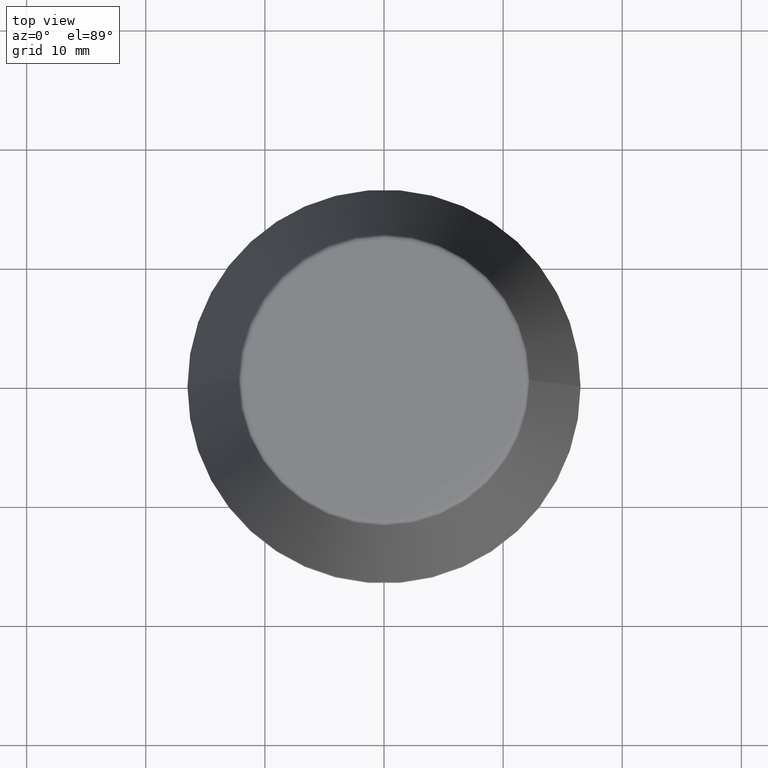
[diagram: clean part render]
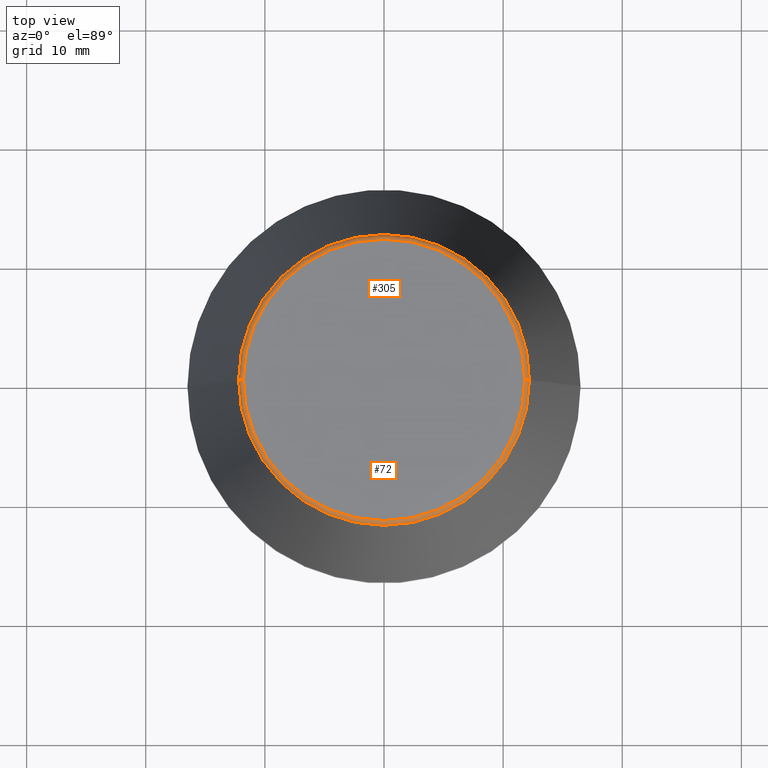
[diagram: same view with one multi-face feature highlighted, each face labeled with its STEP entity id]
A machine part, top view. The highlighted faces form ONE feature: a constant-radius fillet chain: 2 tangent blend faces with common blend radius 0.4 mm. The faces share edges in the B-rep.
Their STEP definitions:
[1] entity #72 (Torus):
#10 = CARTESIAN_POINT ( 'NONE',  ( 12.20600611160694300, 1.757755848304969800E-015, 39.65566924038402900 ) ) ;
#18 = AXIS2_PLACEMENT_3D ( 'NONE', #313, #69, #252 ) ;
#32 = AXIS2_PLACEMENT_3D ( 'NONE', #83, #116, #70 ) ;
#33 = CIRCLE ( 'NONE', #32, 0.4000000000000028000 ) ;
#47 = DIRECTION ( 'NONE',  ( 1.000000000000000000, 0.0000000000000000000, 0.0000000000000000000 ) ) ;
#51 = AXIS2_PLACEMENT_3D ( 'NONE', #310, #99, #66 ) ;
#52 = VERTEX_POINT ( 'NONE', #152 ) ;
#66 = DIRECTION ( 'NONE',  ( 0.0000000000000000000, 0.0000000000000000000, -1.000000000000000000 ) ) ;
#68 = CARTESIAN_POINT ( 'NONE',  ( -12.20600611160694300, 0.0000000000000000000, 39.65566924038402900 ) ) ;
#69 = DIRECTION ( 'NONE',  ( -0.0000000000000000000, -0.0000000000000000000, 1.000000000000000000 ) ) ;
#70 = DIRECTION ( 'NONE',  ( -1.000000000000000000, 1.224646799147352500E-016, 0.0000000000000000000 ) ) ;
#72 = ADVANCED_FACE ( 'NONE', ( #238 ), #271, .T. ) ;
#83 = CARTESIAN_POINT ( 'NONE',  ( -11.80989888411031400, 1.446295486667959300E-015, 39.60000000000000100 ) ) ;
#99 = DIRECTION ( 'NONE',  ( 0.0000000000000000000, -1.000000000000000000, 0.0000000000000000000 ) ) ;
#116 = DIRECTION ( 'NONE',  ( 1.224646799147353200E-016, 1.000000000000000000, 0.0000000000000000000 ) ) ;
#123 = AXIS2_PLACEMENT_3D ( 'NONE', #260, #259, #47 ) ;
#125 = CARTESIAN_POINT ( 'NONE',  ( 11.80989888411031400, 0.0000000000000000000, 40.00000000000000700 ) ) ;
#132 = VERTEX_POINT ( 'NONE', #125 ) ;
#137 = CIRCLE ( 'NONE', #123, 11.80989888411031400 ) ;
#146 = CIRCLE ( 'NONE', #18, 12.20600611160694300 ) ;
#152 = CARTESIAN_POINT ( 'NONE',  ( -11.80989888411031400, 1.470550059081603400E-015, 40.00000000000000700 ) ) ;
#156 = ORIENTED_EDGE ( 'NONE', *, *, #186, .T. ) ;
#177 = AXIS2_PLACEMENT_3D ( 'NONE', #332, #205, #334 ) ;
#186 = EDGE_CURVE ( 'NONE', #194, #132, #267, .T. ) ;
#194 = VERTEX_POINT ( 'NONE', #10 ) ;
#205 = DIRECTION ( 'NONE',  ( -0.0000000000000000000, -0.0000000000000000000, 1.000000000000000000 ) ) ;
#213 = VERTEX_POINT ( 'NONE', #68 ) ;
#229 = EDGE_CURVE ( 'NONE', #213, #194, #146, .T. ) ;
#238 = FACE_OUTER_BOUND ( 'NONE', #384, .T. ) ;
#240 = ORIENTED_EDGE ( 'NONE', *, *, #229, .T. ) ;
#252 = DIRECTION ( 'NONE',  ( 1.000000000000000000, 0.0000000000000000000, 0.0000000000000000000 ) ) ;
#259 = DIRECTION ( 'NONE',  ( -0.0000000000000000000, -0.0000000000000000000, 1.000000000000000000 ) ) ;
#260 = CARTESIAN_POINT ( 'NONE',  ( 0.0000000000000000000, 0.0000000000000000000, 40.00000000000000700 ) ) ;
#267 = CIRCLE ( 'NONE', #51, 0.4000000000000045200 ) ;
#271 = TOROIDAL_SURFACE ( 'NONE', #177, 11.80989888411031400, 0.4000000000000026900 ) ;
#310 = CARTESIAN_POINT ( 'NONE',  ( 11.80989888411031400, 0.0000000000000000000, 39.60000000000000100 ) ) ;
#311 = EDGE_CURVE ( 'NONE', #52, #132, #137, .T. ) ;
#313 = CARTESIAN_POINT ( 'NONE',  ( 0.0000000000000000000, 0.0000000000000000000, 39.65566924038402900 ) ) ;
#332 = CARTESIAN_POINT ( 'NONE',  ( 0.0000000000000000000, 0.0000000000000000000, 39.60000000000000100 ) ) ;
#334 = DIRECTION ( 'NONE',  ( 1.000000000000000000, 0.0000000000000000000, 0.0000000000000000000 ) ) ;
#336 = ORIENTED_EDGE ( 'NONE', *, *, #311, .F. ) ;
#351 = ORIENTED_EDGE ( 'NONE', *, *, #375, .F. ) ;
#375 = EDGE_CURVE ( 'NONE', #213, #52, #33, .T. ) ;
#384 = EDGE_LOOP ( 'NONE', ( #351, #240, #156, #336 ) ) ;
[2] entity #305 (Torus):
#10 = CARTESIAN_POINT ( 'NONE',  ( 12.20600611160694300, 1.757755848304969800E-015, 39.65566924038402900 ) ) ;
#15 = DIRECTION ( 'NONE',  ( -0.0000000000000000000, -0.0000000000000000000, 1.000000000000000000 ) ) ;
#32 = AXIS2_PLACEMENT_3D ( 'NONE', #83, #116, #70 ) ;
#33 = CIRCLE ( 'NONE', #32, 0.4000000000000028000 ) ;
#40 = DIRECTION ( 'NONE',  ( -0.0000000000000000000, -0.0000000000000000000, 1.000000000000000000 ) ) ;
#42 = ORIENTED_EDGE ( 'NONE', *, *, #186, .F. ) ;
#51 = AXIS2_PLACEMENT_3D ( 'NONE', #310, #99, #66 ) ;
#52 = VERTEX_POINT ( 'NONE', #152 ) ;
#54 = ORIENTED_EDGE ( 'NONE', *, *, #375, .T. ) ;
#56 = CIRCLE ( 'NONE', #320, 12.20600611160694300 ) ;
#66 = DIRECTION ( 'NONE',  ( 0.0000000000000000000, 0.0000000000000000000, -1.000000000000000000 ) ) ;
#68 = CARTESIAN_POINT ( 'NONE',  ( -12.20600611160694300, 0.0000000000000000000, 39.65566924038402900 ) ) ;
#70 = DIRECTION ( 'NONE',  ( -1.000000000000000000, 1.224646799147352500E-016, 0.0000000000000000000 ) ) ;
#74 = DIRECTION ( 'NONE',  ( 1.000000000000000000, 0.0000000000000000000, 0.0000000000000000000 ) ) ;
#83 = CARTESIAN_POINT ( 'NONE',  ( -11.80989888411031400, 1.446295486667959300E-015, 39.60000000000000100 ) ) ;
#99 = DIRECTION ( 'NONE',  ( 0.0000000000000000000, -1.000000000000000000, 0.0000000000000000000 ) ) ;
#116 = DIRECTION ( 'NONE',  ( 1.224646799147353200E-016, 1.000000000000000000, 0.0000000000000000000 ) ) ;
#125 = CARTESIAN_POINT ( 'NONE',  ( 11.80989888411031400, 0.0000000000000000000, 40.00000000000000700 ) ) ;
#132 = VERTEX_POINT ( 'NONE', #125 ) ;
#139 = DIRECTION ( 'NONE',  ( 1.000000000000000000, 0.0000000000000000000, 0.0000000000000000000 ) ) ;
#141 = CARTESIAN_POINT ( 'NONE',  ( 0.0000000000000000000, 0.0000000000000000000, 39.60000000000000100 ) ) ;
#152 = CARTESIAN_POINT ( 'NONE',  ( -11.80989888411031400, 1.470550059081603400E-015, 40.00000000000000700 ) ) ;
#163 = DIRECTION ( 'NONE',  ( 1.000000000000000000, 0.0000000000000000000, 0.0000000000000000000 ) ) ;
#172 = CARTESIAN_POINT ( 'NONE',  ( 0.0000000000000000000, 0.0000000000000000000, 40.00000000000000700 ) ) ;
#179 = EDGE_LOOP ( 'NONE', ( #211, #54, #363, #42 ) ) ;
#186 = EDGE_CURVE ( 'NONE', #194, #132, #267, .T. ) ;
#194 = VERTEX_POINT ( 'NONE', #10 ) ;
#206 = TOROIDAL_SURFACE ( 'NONE', #353, 11.80989888411031400, 0.4000000000000026900 ) ;
#211 = ORIENTED_EDGE ( 'NONE', *, *, #258, .T. ) ;
#213 = VERTEX_POINT ( 'NONE', #68 ) ;
#230 = DIRECTION ( 'NONE',  ( -0.0000000000000000000, -0.0000000000000000000, 1.000000000000000000 ) ) ;
#242 = AXIS2_PLACEMENT_3D ( 'NONE', #172, #230, #139 ) ;
#255 = CARTESIAN_POINT ( 'NONE',  ( 0.0000000000000000000, 0.0000000000000000000, 39.65566924038402900 ) ) ;
#258 = EDGE_CURVE ( 'NONE', #194, #213, #56, .T. ) ;
#267 = CIRCLE ( 'NONE', #51, 0.4000000000000045200 ) ;
#283 = FACE_OUTER_BOUND ( 'NONE', #179, .T. ) ;
#305 = ADVANCED_FACE ( 'NONE', ( #283 ), #206, .T. ) ;
#310 = CARTESIAN_POINT ( 'NONE',  ( 11.80989888411031400, 0.0000000000000000000, 39.60000000000000100 ) ) ;
#320 = AXIS2_PLACEMENT_3D ( 'NONE', #255, #40, #163 ) ;
#350 = CIRCLE ( 'NONE', #242, 11.80989888411031400 ) ;
#353 = AXIS2_PLACEMENT_3D ( 'NONE', #141, #15, #74 ) ;
#363 = ORIENTED_EDGE ( 'NONE', *, *, #365, .F. ) ;
#365 = EDGE_CURVE ( 'NONE', #132, #52, #350, .T. ) ;
#375 = EDGE_CURVE ( 'NONE', #213, #52, #33, .T. ) ;